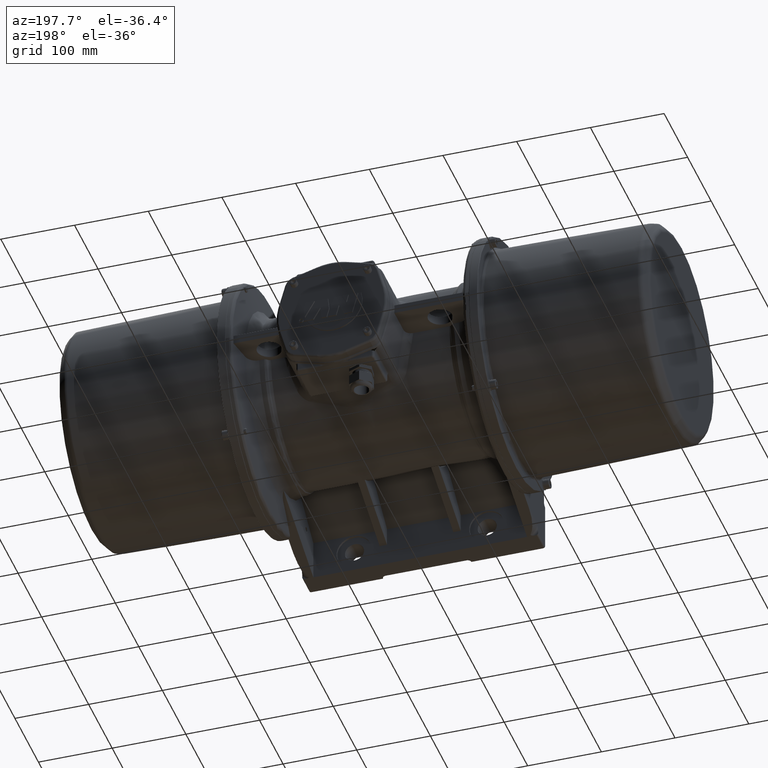
[diagram: clean part render]
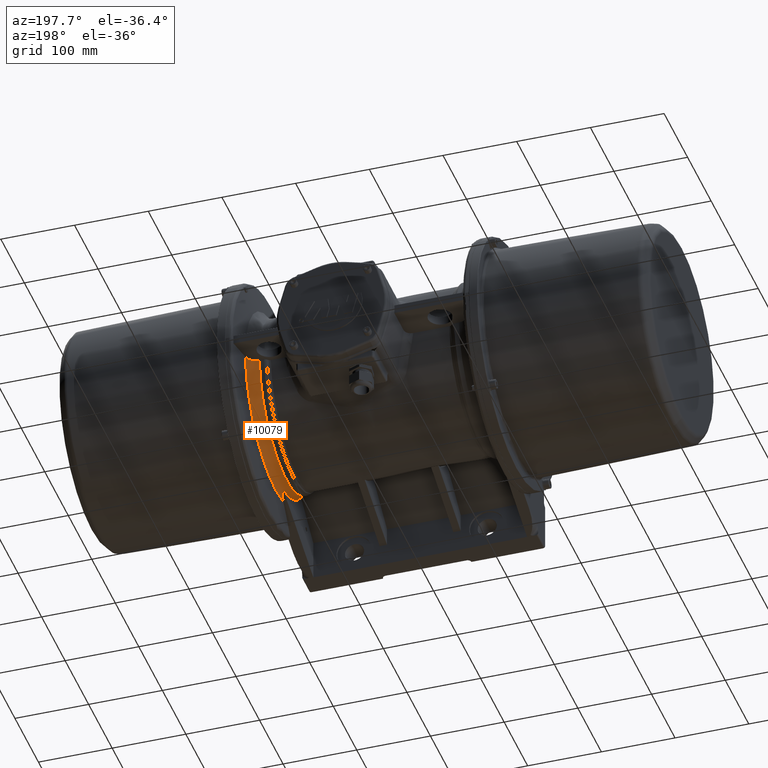
[diagram: same view with one face highlighted and labeled with its STEP entity id]
A machine part, auxiliary view. The second image highlights one B-rep face of the part: STEP entity #10079.
In plain terms, the highlighted face is a freeform B-spline surface patch.
Its self-contained STEP definition (entity closure, byte-faithful):
#9094 = CARTESIAN_POINT ( 'NONE',  ( 145.0000000000000000, -91.18151381713731500, -78.71630535614379200 ) ) ;
#9115 = CARTESIAN_POINT ( 'NONE',  ( 135.4205686394136300, -88.33433576566990600, -76.72268982188089100 ) ) ;
#9603 = B_SPLINE_CURVE_WITH_KNOTS ( 'NONE', 3,
 ( #31777, #31771, #31778, #31779, #31780, #31781, #31782, #31783, #31784, #31785, #31786, #31787 ),
 .UNSPECIFIED., .F., .F.,
 ( 4, 2, 2, 2, 2, 4 ),
 ( 0.0000000000000000000, 0.002589022802366121300, 0.003883534203549152000, 0.005178045604732182800, 0.007767068407098178300, 0.01035609120946417300 ),
 .UNSPECIFIED. ) ;
#10079 = ADVANCED_FACE ( 'NONE', ( #47263 ), #24013, .F. ) ;
#10216 = B_SPLINE_CURVE_WITH_KNOTS ( 'NONE', 3,
 ( #34280, #34289, #34290, #34291, #34292, #34294, #34295, #34296, #34297, #34299, #34301, #34302, #34303, #34305, #34306, #34307, #34308, #34310, #34311, #34312, #34314, #34315, #34316, #34317, #34319, #34320 ),
 .UNSPECIFIED., .F., .F.,
 ( 4, 2, 2, 2, 2, 2, 2, 2, 2, 2, 2, 2, 4 ),
 ( 6.306076552953321600E-015, 0.002606069045844240200, 0.003909103568763206400, 0.005212138091682173800, 0.007818207137520169500, 0.009121241660439203700, 0.01042427618335823800, 0.01303034522919624200, 0.01433337975211528900, 0.01563641427503433700, 0.01824248332087246400, 0.01954551784379155200, 0.02084855236671064000 ),
 .UNSPECIFIED. ) ;
#13561 = CARTESIAN_POINT ( 'NONE',  ( 150.1925129349334900, 129.2574885373879900, -6.000000000000000000 ) ) ;
#13564 = CARTESIAN_POINT ( 'NONE',  ( 135.4205686394168100, 116.8474475915784000, -6.000000000000000000 ) ) ;
#15668 = AXIS2_PLACEMENT_3D ( 'NONE', #34336, #34344, #34345 ) ;
#15703 = AXIS2_PLACEMENT_3D ( 'NONE', #35481, #31918, #35686 ) ;
#23816 = B_SPLINE_CURVE_WITH_KNOTS ( 'NONE', 3,
 ( #73846, #73856, #73859, #73862, #73865, #73866, #73868, #73870, #73872, #73874, #73875, #73877 ),
 .UNSPECIFIED., .F., .F.,
 ( 4, 2, 2, 2, 2, 4 ),
 ( 8.582937747229194600E-017, 0.004348997768747619700, 0.008697995537495152600, 0.01087249442186891300, 0.01304699330624267200, 0.01739599107499020800 ),
 .UNSPECIFIED. ) ;
#24013 =( BOUNDED_SURFACE ( )  B_SPLINE_SURFACE ( 3, 3, ( 
 ( #42886, #42867, #42876, #42888 ),
 ( #42889, #42890, #42891, #42892 ),
 ( #42893, #42894, #42895, #42896 ),
 ( #42897, #42898, #42899, #42900 ) ),
 .UNSPECIFIED., .F., .F., .F. ) 
 B_SPLINE_SURFACE_WITH_KNOTS ( ( 4, 4 ),
 ( 4, 4 ),
 ( 0.0000000000000000000, 1.000000000000000000 ),
 ( 0.0000000000000000000, 1.000000000000000000 ),
 .UNSPECIFIED. ) 
 GEOMETRIC_REPRESENTATION_ITEM ( )  RATIONAL_B_SPLINE_SURFACE ( (
 ( 1.000000000000000000, 0.5712838526328393200, 0.5712838526328393200, 1.000000000000000000),
 ( 0.8440320856099119400, 0.4821819016129609300, 0.4821819016129609300, 0.8440320856099119400),
 ( 0.8440320856099119400, 0.4821819016129609300, 0.4821819016129609300, 0.8440320856099119400),
 ( 1.000000000000000000, 0.5712838526328393200, 0.5712838526328393200, 1.000000000000000000) ) ) 
 REPRESENTATION_ITEM ( '' )  SURFACE ( )  );
#24230 = VERTEX_POINT ( 'NONE', #76068 ) ;
#24825 = VERTEX_POINT ( 'NONE', #9094 ) ;
#24839 = VERTEX_POINT ( 'NONE', #9115 ) ;
#31771 = CARTESIAN_POINT ( 'NONE',  ( 144.3278019420034200, -90.72216961077515400, -78.39466908021607600 ) ) ;
#31777 = CARTESIAN_POINT ( 'NONE',  ( 145.0000000000000000, -91.18151381713731500, -78.71630535614379200 ) ) ;
#31778 = CARTESIAN_POINT ( 'NONE',  ( 143.6168793466463000, -90.31735160511271900, -78.11121246104818300 ) ) ;
#31779 = CARTESIAN_POINT ( 'NONE',  ( 142.4946885698759000, -89.78870364624350500, -77.74104917518880600 ) ) ;
#31780 = CARTESIAN_POINT ( 'NONE',  ( 142.1112693323988800, -89.62566090419950600, -77.62688541815921900 ) ) ;
#31781 = CARTESIAN_POINT ( 'NONE',  ( 141.3254601840557400, -89.32628713353980700, -77.41726164720105900 ) ) ;
#31782 = CARTESIAN_POINT ( 'NONE',  ( 140.9218418531086200, -89.18959508470175000, -77.32154884419124100 ) ) ;
#31783 = CARTESIAN_POINT ( 'NONE',  ( 139.6896388254821200, -88.82346364624027000, -77.06518085100491100 ) ) ;
#31784 = CARTESIAN_POINT ( 'NONE',  ( 138.8544228673891900, -88.64153964514758900, -76.93779629405854300 ) ) ;
#31785 = CARTESIAN_POINT ( 'NONE',  ( 137.1576100369449300, -88.39698317431967200, -76.76655600966690000 ) ) ;
#31786 = CARTESIAN_POINT ( 'NONE',  ( 136.2960146398690700, -88.33434403359881100, -76.72269561114728700 ) ) ;
#31787 = CARTESIAN_POINT ( 'NONE',  ( 135.4205686394136300, -88.33433576566990600, -76.72268982188089100 ) ) ;
#31918 = DIRECTION ( 'NONE',  ( 1.000000000000000000, 1.516707102608384900E-016, 0.0000000000000000000 ) ) ;
#32532 = CIRCLE ( 'NONE', #15668, 117.0013931911354100 ) ;
#32679 = CIRCLE ( 'NONE', #15703, 129.3966705251452000 ) ;
#32723 = CIRCLE ( 'NONE', #36772, 120.4588111800313900 ) ;
#34280 = CARTESIAN_POINT ( 'NONE',  ( 135.4205686394168100, 116.8474475915784000, -6.000000000000000000 ) ) ;
#34289 = CARTESIAN_POINT ( 'NONE',  ( 136.3017729760249800, 116.8474577093480900, -5.999999999999919200 ) ) ;
#34290 = CARTESIAN_POINT ( 'NONE',  ( 137.1698346236302100, 116.9246120601116800, -5.999999999999965400 ) ) ;
#34291 = CARTESIAN_POINT ( 'NONE',  ( 138.4530427259118100, 117.1511900173613700, -5.999999999999965400 ) ) ;
#34292 = CARTESIAN_POINT ( 'NONE',  ( 138.8776125273300300, 117.2453009815122300, -5.999999999999925400 ) ) ;
#34294 = CARTESIAN_POINT ( 'NONE',  ( 139.7203380135266300, 117.4711721388558100, -5.999999999999924500 ) ) ;
#34295 = CARTESIAN_POINT ( 'NONE',  ( 140.1398541749698000, 117.6034364841436700, -6.000000000000060400 ) ) ;
#34296 = CARTESIAN_POINT ( 'NONE',  ( 141.3791986786810100, 118.0553325502670200, -6.000000000000060400 ) ) ;
#34297 = CARTESIAN_POINT ( 'NONE',  ( 142.1677397397428400, 118.4246033289673800, -5.999999999999923600 ) ) ;
#34299 = CARTESIAN_POINT ( 'NONE',  ( 143.2960674408507800, 119.0768222676407200, -5.999999999999925400 ) ) ;
#34301 = CARTESIAN_POINT ( 'NONE',  ( 143.6630425624709300, 119.3107105141459400, -5.999999999999944000 ) ) ;
#34302 = CARTESIAN_POINT ( 'NONE',  ( 144.3784335679432900, 119.8119759902187000, -5.999999999999944000 ) ) ;
#34303 = CARTESIAN_POINT ( 'NONE',  ( 144.7284614627335800, 120.0807612041098900, -6.000000000000016900 ) ) ;
#34305 = CARTESIAN_POINT ( 'NONE',  ( 145.7364466601473800, 120.9279476464150100, -6.000000000000017800 ) ) ;
#34306 = CARTESIAN_POINT ( 'NONE',  ( 146.3507656519805700, 121.5441110238511900, -5.999999999999986700 ) ) ;
#34307 = CARTESIAN_POINT ( 'NONE',  ( 147.1883416887745300, 122.5430948869538400, -5.999999999999986700 ) ) ;
#34308 = CARTESIAN_POINT ( 'NONE',  ( 147.4534689255554600, 122.8886181574735300, -6.000000000000043500 ) ) ;
#34310 = CARTESIAN_POINT ( 'NONE',  ( 147.9550557242039300, 123.6052013486337400, -6.000000000000042600 ) ) ;
#34311 = CARTESIAN_POINT ( 'NONE',  ( 148.1924716869439200, 123.9781097949202100, -6.000000000000007100 ) ) ;
#34312 = CARTESIAN_POINT ( 'NONE',  ( 148.8490783965282800, 125.1169063052364700, -6.000000000000008000 ) ) ;
#34314 = CARTESIAN_POINT ( 'NONE',  ( 149.2158359100353100, 125.9053403456228500, -5.999999999999986700 ) ) ;
#34315 = CARTESIAN_POINT ( 'NONE',  ( 149.6620383185902200, 127.1308011550036400, -5.999999999999984900 ) ) ;
#34316 = CARTESIAN_POINT ( 'NONE',  ( 149.7933512467326400, 127.5464637850046800, -5.999999999999958300 ) ) ;
#34317 = CARTESIAN_POINT ( 'NONE',  ( 150.0203537692272800, 128.3924620875168900, -5.999999999999958300 ) ) ;
#34319 = CARTESIAN_POINT ( 'NONE',  ( 150.1160854914315900, 128.8235802449549100, -5.999999999999909400 ) ) ;
#34320 = CARTESIAN_POINT ( 'NONE',  ( 150.1925129349334900, 129.2574885373879900, -6.000000000000000000 ) ) ;
#34336 = CARTESIAN_POINT ( 'NONE',  ( 135.4205686394040200, 2.053933382944504800E-014, 0.0000000000000000000 ) ) ;
#34344 = DIRECTION ( 'NONE',  ( -1.000000000000000000, -1.516707102608384900E-016, -0.0000000000000000000 ) ) ;
#34345 = DIRECTION ( 'NONE',  ( 1.091231859293503900E-014, 1.000000000000000000, 0.0000000000000000000 ) ) ;
#35481 = CARTESIAN_POINT ( 'NONE',  ( 150.1925129349334900, 2.999607298617504100E-014, 0.0000000000000000000 ) ) ;
#35686 = DIRECTION ( 'NONE',  ( -2.144999210797720700E-016, 1.000000000000000000, 0.0000000000000000000 ) ) ;
#35835 = CARTESIAN_POINT ( 'NONE',  ( 145.0000000000000000, 2.920852086129504500E-014, 0.0000000000000000000 ) ) ;
#35851 = DIRECTION ( 'NONE',  ( 1.000000000000000000, 1.516707102608384900E-016, 0.0000000000000000000 ) ) ;
#35852 = DIRECTION ( 'NONE',  ( -2.304154867853285800E-016, 1.000000000000000000, 0.0000000000000000000 ) ) ;
#36772 = AXIS2_PLACEMENT_3D ( 'NONE', #35835, #35851, #35852 ) ;
#37605 = EDGE_LOOP ( 'NONE', ( #54334, #54335, #54336, #54337, #54338, #54339 ) ) ;
#38290 = VERTEX_POINT ( 'NONE', #72085 ) ;
#40085 = EDGE_CURVE ( 'NONE', #24230, #38290, #23816, .T. ) ;
#42867 = CARTESIAN_POINT ( 'NONE',  ( 135.4205686394168400, -7.691835796233905700, -172.9085396594175000 ) ) ;
#42876 = CARTESIAN_POINT ( 'NONE',  ( 135.4205686394168100, 112.8493471043368700, -131.2309120717885100 ) ) ;
#42886 = CARTESIAN_POINT ( 'NONE',  ( 135.4205686394168400, -89.64852812982684300, -75.18289308627515800 ) ) ;
#42888 = CARTESIAN_POINT ( 'NONE',  ( 135.4205686394167900, 116.9411659752465500, -3.753626115702941100 ) ) ;
#42889 = CARTESIAN_POINT ( 'NONE',  ( 143.0361940239614300, -89.64859504029198000, -75.18294920010602300 ) ) ;
#42890 = CARTESIAN_POINT ( 'NONE',  ( 143.0361940239614000, -7.691841537145916300, -172.9086687121867700 ) ) ;
#42891 = CARTESIAN_POINT ( 'NONE',  ( 143.0361940239613100, 112.8494313310661000, -131.2310100178624700 ) ) ;
#42892 = CARTESIAN_POINT ( 'NONE',  ( 143.0361940239613400, 116.9412532559635000, -3.753628917275644300 ) ) ;
#42893 = CARTESIAN_POINT ( 'NONE',  ( 148.8700734650264500, -93.39943183307859400, -78.32855312087267000 ) ) ;
#42894 = CARTESIAN_POINT ( 'NONE',  ( 148.8700734650264200, -8.013663002712029000, -180.1430508696085700 ) ) ;
#42895 = CARTESIAN_POINT ( 'NONE',  ( 148.8700734650263700, 117.5709754767537000, -136.7216270265095900 ) ) ;
#42896 = CARTESIAN_POINT ( 'NONE',  ( 148.8700734650263700, 121.8339964730759100, -3.910678221205698500 ) ) ;
#42897 = CARTESIAN_POINT ( 'NONE',  ( 150.1925129349335500, -99.14600793282112100, -83.14786499951736700 ) ) ;
#42898 = CARTESIAN_POINT ( 'NONE',  ( 150.1925129349335500, -8.506718724561364900, -191.2266916407011500 ) ) ;
#42899 = CARTESIAN_POINT ( 'NONE',  ( 150.1925129349334900, 124.8047513620888500, -145.1336828470696800 ) ) ;
#42900 = CARTESIAN_POINT ( 'NONE',  ( 150.1925129349334900, 129.3300627609259800, -4.151290070321956600 ) ) ;
#46511 = VERTEX_POINT ( 'NONE', #13561 ) ;
#46514 = VERTEX_POINT ( 'NONE', #13564 ) ;
#47263 = FACE_OUTER_BOUND ( 'NONE', #37605, .T. ) ;
#54334 = ORIENTED_EDGE ( 'NONE', *, *, #70029, .F. ) ;
#54335 = ORIENTED_EDGE ( 'NONE', *, *, #69044, .T. ) ;
#54336 = ORIENTED_EDGE ( 'NONE', *, *, #69208, .F. ) ;
#54337 = ORIENTED_EDGE ( 'NONE', *, *, #69202, .T. ) ;
#54338 = ORIENTED_EDGE ( 'NONE', *, *, #69405, .F. ) ;
#54339 = ORIENTED_EDGE ( 'NONE', *, *, #40085, .F. ) ;
#69044 = EDGE_CURVE ( 'NONE', #24825, #24839, #9603, .T. ) ;
#69202 = EDGE_CURVE ( 'NONE', #46514, #46511, #10216, .T. ) ;
#69208 = EDGE_CURVE ( 'NONE', #46514, #24839, #32532, .T. ) ;
#69405 = EDGE_CURVE ( 'NONE', #38290, #46511, #32679, .T. ) ;
#70029 = EDGE_CURVE ( 'NONE', #24825, #24230, #32723, .T. ) ;
#72085 = CARTESIAN_POINT ( 'NONE',  ( 150.1925129349334900, -31.41995900968539600, -125.5240396052592000 ) ) ;
#73846 = CARTESIAN_POINT ( 'NONE',  ( 145.0000000000000000, -16.02601029982505000, -119.3879901195105900 ) ) ;
#73856 = CARTESIAN_POINT ( 'NONE',  ( 145.7482294323678500, -17.20189203191321400, -119.8566982225107600 ) ) ;
#73859 = CARTESIAN_POINT ( 'NONE',  ( 146.3933197343107500, -18.41443861984115000, -120.3400209883282600 ) ) ;
#73862 = CARTESIAN_POINT ( 'NONE',  ( 147.5328741029763600, -20.89307780851753200, -121.3280100355629400 ) ) ;
#73865 = CARTESIAN_POINT ( 'NONE',  ( 148.0262177843042700, -22.15956869426989000, -121.8328350739402500 ) ) ;
#73866 = CARTESIAN_POINT ( 'NONE',  ( 148.6656805325480400, -24.09505045665009600, -122.6043208113925000 ) ) ;
#73868 = CARTESIAN_POINT ( 'NONE',  ( 148.8618907903345100, -24.74623445159738100, -122.8638836625248000 ) ) ;
#73870 = CARTESIAN_POINT ( 'NONE',  ( 149.2209941636932100, -26.06044632859070700, -123.3877303547528900 ) ) ;
#73872 = CARTESIAN_POINT ( 'NONE',  ( 149.3840790175236700, -26.72451390594010300, -123.6524286198502800 ) ) ;
#73874 = CARTESIAN_POINT ( 'NONE',  ( 149.8205327346702800, -28.72320197723772800, -124.4491084804374300 ) ) ;
#73875 = CARTESIAN_POINT ( 'NONE',  ( 150.0422467067840800, -30.06616306018687700, -124.9844146463681800 ) ) ;
#73877 = CARTESIAN_POINT ( 'NONE',  ( 150.1925129349334900, -31.41995900968539600, -125.5240396052592000 ) ) ;
#76068 = CARTESIAN_POINT ( 'NONE',  ( 145.0000000000000000, -16.02601029982505000, -119.3879901195105900 ) ) ;